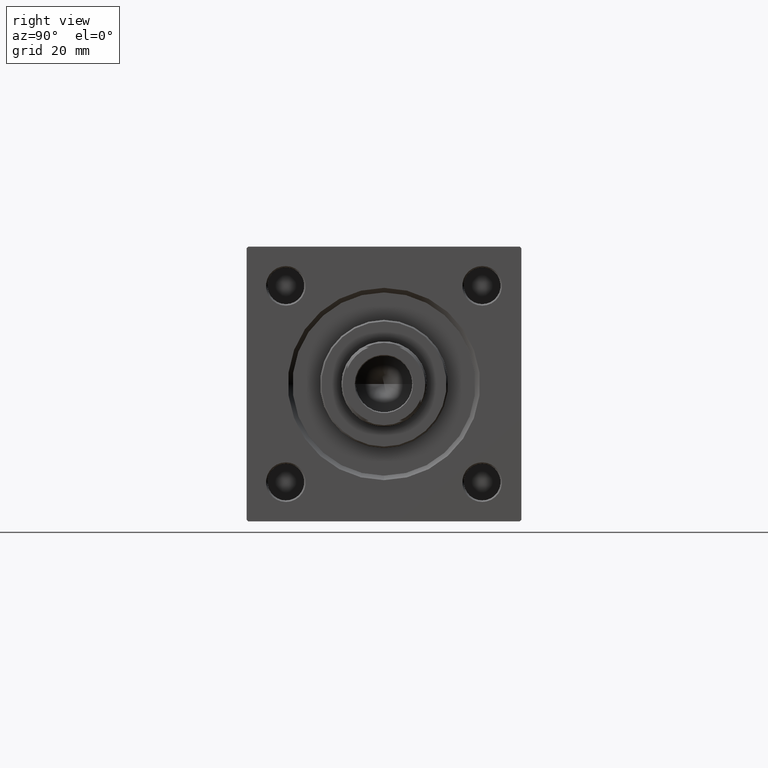
[diagram: clean part render]
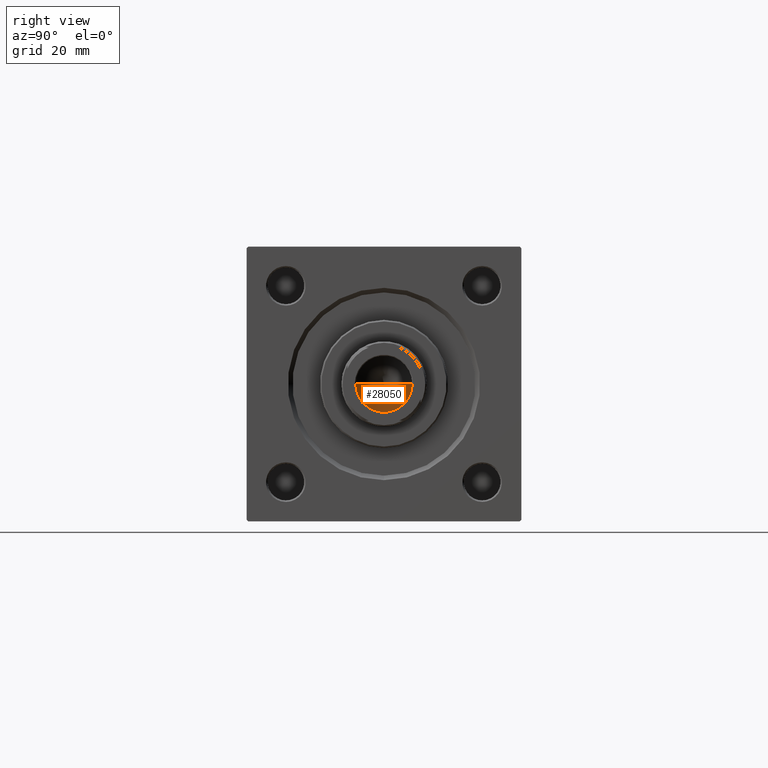
[diagram: same view with one face highlighted and labeled with its STEP entity id]
A machine part, right view. The second image highlights one B-rep face of the part: STEP entity #28050.
In plain terms, the highlighted conical surface has half-angle 59 deg.
Its self-contained STEP definition (entity closure, byte-faithful):
#4822 = CIRCLE ( 'NONE', #29173, 9.249999999999992895 ) ;
#5871 = EDGE_CURVE ( 'NONE', #43236, #47729, #4822, .T. ) ;
#7417 = EDGE_LOOP ( 'NONE', ( #38326, #38055, #37807 ) ) ;
#8668 = AXIS2_PLACEMENT_3D ( 'NONE', #9634, #48714, #32981 ) ;
#9634 = CARTESIAN_POINT ( 'NONE',  ( 0.000000000000000000, 0.000000000000000000, 114.9999999999999858 ) ) ;
#11328 = CARTESIAN_POINT ( 'NONE',  ( 9.249999999999992895, 0.000000000000000000, 114.9999999999999858 ) ) ;
#11408 = EDGE_CURVE ( 'NONE', #44178, #47729, #15182, .T. ) ;
#12270 = CARTESIAN_POINT ( 'NONE',  ( -9.249999999999992895, 1.132798289211300712E-15, 114.9999999999999858 ) ) ;
#13406 = DIRECTION ( 'NONE',  ( 1.000000000000000000, 0.000000000000000000, 0.000000000000000000 ) ) ;
#14663 = VECTOR ( 'NONE', #49979, 1000.000000000000000 ) ;
#15182 = LINE ( 'NONE', #42857, #14663 ) ;
#19193 = CONICAL_SURFACE ( 'NONE', #8668, 9.249999999999992895, 1.029744258676653423 ) ;
#21304 = FACE_OUTER_BOUND ( 'NONE', #7417, .T. ) ;
#23829 = CARTESIAN_POINT ( 'NONE',  ( -9.769621978240258809E-15, 0.000000000000000000, 109.4420392739950501 ) ) ;
#26811 = DIRECTION ( 'NONE',  ( 0.8571673007021117785, 0.000000000000000000, 0.5150380749100550437 ) ) ;
#28050 = ADVANCED_FACE ( 'NONE', ( #21304 ), #19193, .F. ) ;
#28569 = VECTOR ( 'NONE', #26811, 1000.000000000000000 ) ;
#29173 = AXIS2_PLACEMENT_3D ( 'NONE', #33424, #40056, #13406 ) ;
#32981 = DIRECTION ( 'NONE',  ( 1.000000000000000000, 0.000000000000000000, 0.000000000000000000 ) ) ;
#33424 = CARTESIAN_POINT ( 'NONE',  ( 0.000000000000000000, 0.000000000000000000, 114.9999999999999858 ) ) ;
#37807 = ORIENTED_EDGE ( 'NONE', *, *, #5871, .T. ) ;
#38055 = ORIENTED_EDGE ( 'NONE', *, *, #42821, .T. ) ;
#38326 = ORIENTED_EDGE ( 'NONE', *, *, #11408, .F. ) ;
#40056 = DIRECTION ( 'NONE',  ( -0.000000000000000000, -0.000000000000000000, 1.000000000000000000 ) ) ;
#42821 = EDGE_CURVE ( 'NONE', #44178, #43236, #46114, .T. ) ;
#42857 = CARTESIAN_POINT ( 'NONE',  ( -9.249999999999992895, 1.132798289211300712E-15, 114.9999999999999858 ) ) ;
#43236 = VERTEX_POINT ( 'NONE', #43633 ) ;
#43633 = CARTESIAN_POINT ( 'NONE',  ( 9.249999999999992895, 0.000000000000000000, 114.9999999999999858 ) ) ;
#44178 = VERTEX_POINT ( 'NONE', #23829 ) ;
#46114 = LINE ( 'NONE', #11328, #28569 ) ;
#47729 = VERTEX_POINT ( 'NONE', #12270 ) ;
#48714 = DIRECTION ( 'NONE',  ( -0.000000000000000000, -0.000000000000000000, 1.000000000000000000 ) ) ;
#49979 = DIRECTION ( 'NONE',  ( -0.8571673007021117785, 1.049727191138617956E-16, 0.5150380749100550437 ) ) ;